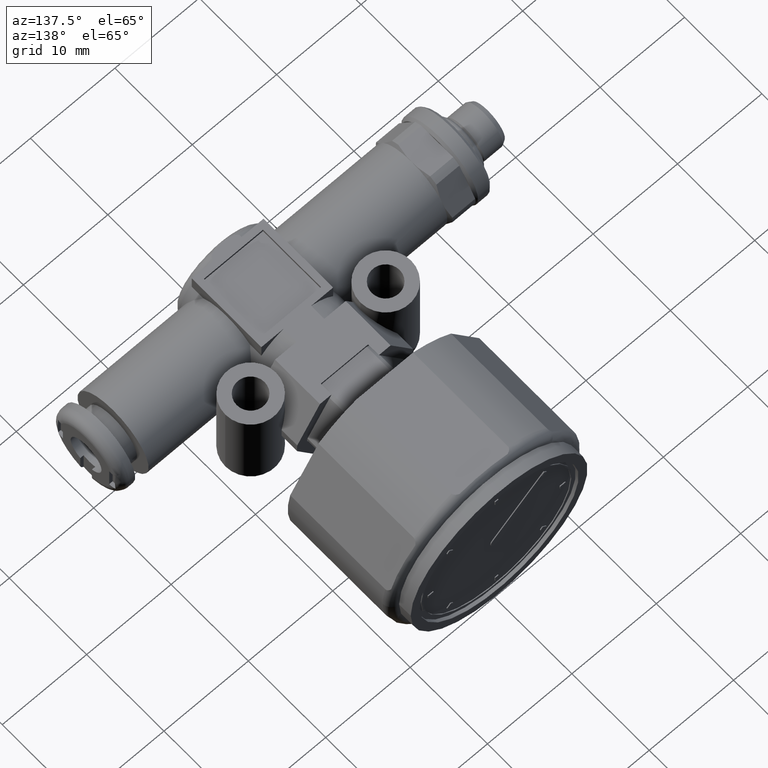
[diagram: clean part render]
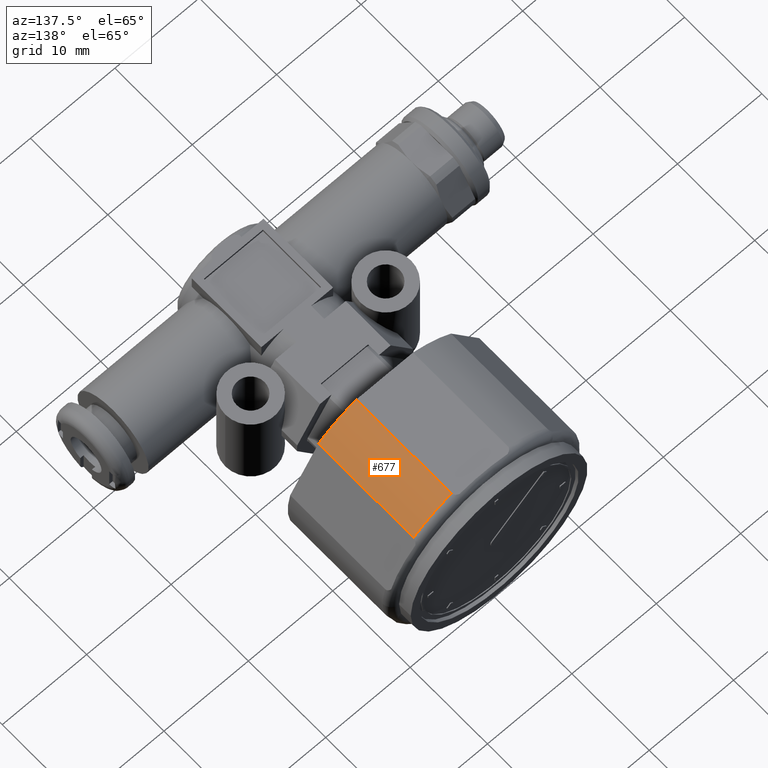
[diagram: same view with one face highlighted and labeled with its STEP entity id]
A machine part, auxiliary view. The second image highlights one B-rep face of the part: STEP entity #677.
In plain terms, the highlighted cylindrical surface (partial cylindrical patch) has radius 11.5 mm, axis along (0, 1, 0).
Its self-contained STEP definition (entity closure, byte-faithful):
#677 = ADVANCED_FACE( '', ( #1418 ), #1419, .T. );
#1418 = FACE_OUTER_BOUND( '', #2204, .T. );
#1419 = CYLINDRICAL_SURFACE( '', #2205, 11.5000000000000 );
#2204 = EDGE_LOOP( '', ( #3827, #3828, #3829, #3830 ) );
#2205 = AXIS2_PLACEMENT_3D( '', #3831, #3832, #3833 );
#3827 = ORIENTED_EDGE( '', *, *, #4365, .F. );
#3828 = ORIENTED_EDGE( '', *, *, #4673, .T. );
#3829 = ORIENTED_EDGE( '', *, *, #4520, .T. );
#3830 = ORIENTED_EDGE( '', *, *, #4868, .T. );
#3831 = CARTESIAN_POINT( '', ( 0.000000000000000, 0.000000000000000, 0.000000000000000 ) );
#3832 = DIRECTION( '', ( -0.000000000000000, 1.00000000000000, 0.000000000000000 ) );
#3833 = DIRECTION( '', ( 0.000000000000000, 0.000000000000000, -1.00000000000000 ) );
#4365 = EDGE_CURVE( '', #5148, #5150, #5151, .T. );
#4520 = EDGE_CURVE( '', #5418, #5416, #5419, .T. );
#4673 = EDGE_CURVE( '', #5148, #5418, #5652, .F. );
#4868 = EDGE_CURVE( '', #5416, #5150, #5918, .T. );
#5148 = VERTEX_POINT( '', #6351 );
#5150 = VERTEX_POINT( '', #6354 );
#5151 = CIRCLE( '', #6355, 11.5000000000000 );
#5416 = VERTEX_POINT( '', #6883 );
#5418 = VERTEX_POINT( '', #6892 );
#5419 = CIRCLE( '', #6893, 11.5000000000000 );
#5652 = LINE( '', #7296, #7297 );
#5918 = LINE( '', #7749, #7750 );
#6351 = CARTESIAN_POINT( '', ( 8.40473750965557, 5.21000000000000, -7.84922845850398 ) );
#6354 = CARTESIAN_POINT( '', ( 11.0000000000000, 5.21000000000000, -3.35410196624968 ) );
#6355 = AXIS2_PLACEMENT_3D( '', #8157, #8158, #8159 );
#6883 = CARTESIAN_POINT( '', ( 11.0000000000000, 17.5000000000000, -3.35410196624968 ) );
#6892 = CARTESIAN_POINT( '', ( 8.40473750965556, 17.5000000000000, -7.84922845850398 ) );
#6893 = AXIS2_PLACEMENT_3D( '', #8350, #8351, #8352 );
#7296 = CARTESIAN_POINT( '', ( 8.40473750965556, 0.000000000000000, -7.84922845850398 ) );
#7297 = VECTOR( '', #8515, 1000.00000000000 );
#7749 = CARTESIAN_POINT( '', ( 11.0000000000000, 0.000000000000000, -3.35410196624968 ) );
#7750 = VECTOR( '', #8688, 1000.00000000000 );
#8157 = CARTESIAN_POINT( '', ( 0.000000000000000, 5.21000000000000, 0.000000000000000 ) );
#8158 = DIRECTION( '', ( 0.000000000000000, -1.00000000000000, -0.000000000000000 ) );
#8159 = DIRECTION( '', ( 0.000000000000000, 0.000000000000000, -1.00000000000000 ) );
#8350 = CARTESIAN_POINT( '', ( 0.000000000000000, 17.5000000000000, 0.000000000000000 ) );
#8351 = DIRECTION( '', ( 0.000000000000000, -1.00000000000000, -0.000000000000000 ) );
#8352 = DIRECTION( '', ( 0.000000000000000, 0.000000000000000, -1.00000000000000 ) );
#8515 = DIRECTION( '', ( -0.000000000000000, -1.00000000000000, -0.000000000000000 ) );
#8688 = DIRECTION( '', ( -0.000000000000000, -1.00000000000000, -0.000000000000000 ) );